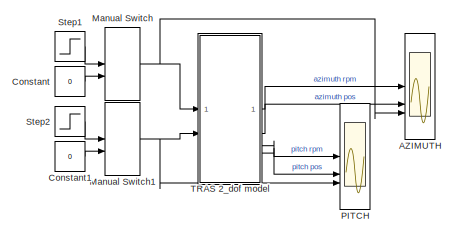
[diagram: root canvas - part 1/2, top left region]
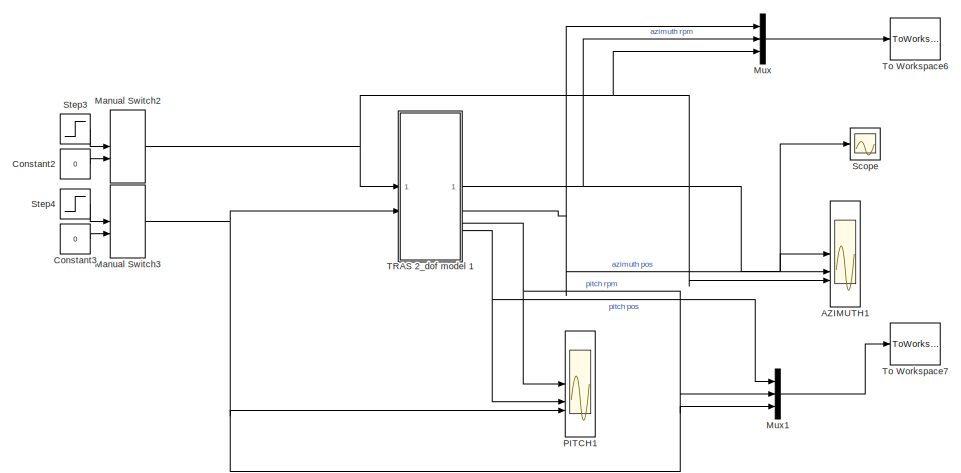
[diagram: root canvas - part 2/2, bottom right region]
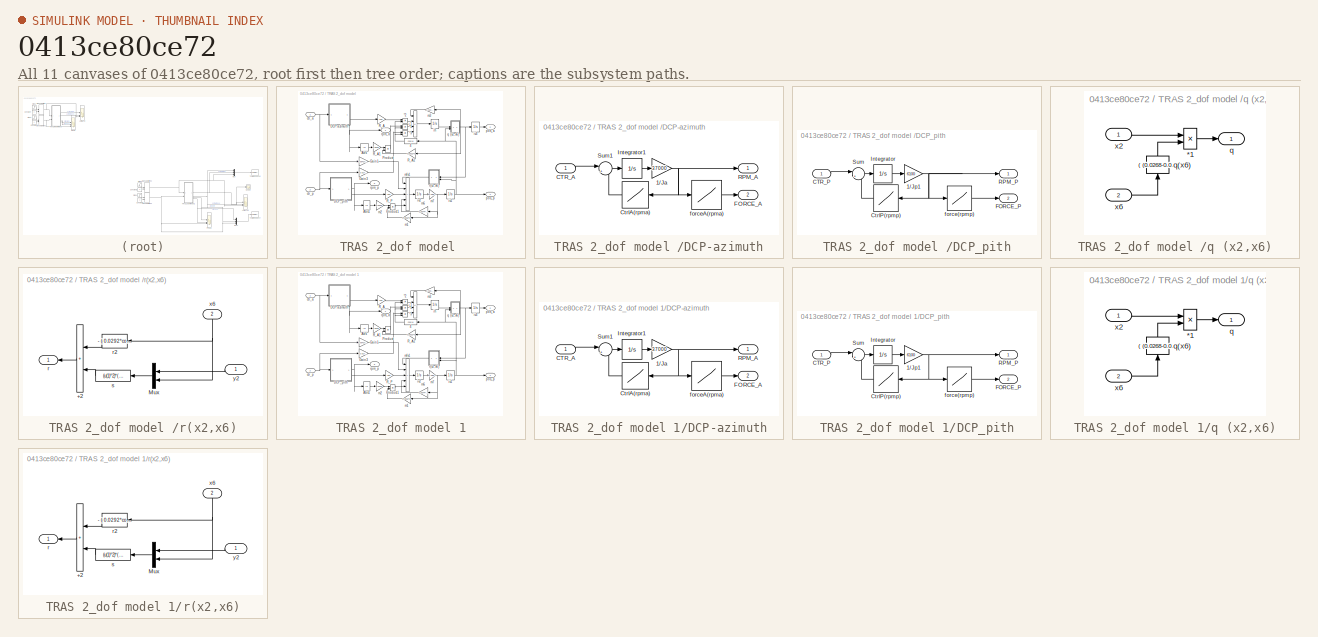
[diagram: thumbnail index - all 11 canvases of the model, root first then tree order]
MODEL slx_0413ce80ce72
KIND model
CONFIG AbsTol = auto
CONFIG EnableMultiTasking = on
CONFIG FixedStep = .02
CONFIG MaxStep = auto
CONFIG MinStep = auto
CONFIG PreLoadFcn = load tras_char
CONFIG RelTol = 1e-3
CONFIG SampleTimeConstraint = Unconstrained
CONFIG SolverName = ode3
CONFIG StartTime = 0.0
CONFIG StopTime = 20
BLOCK [Scope] AZIMUTH
  Commented = on
  Floating = off
  NumInputPorts = 3
  ScopeSpecificationString = Simulink.scopes.TimeScopeBlockCfg('CurrentConfiguration', extmgr.ConfigurationSet(extmgr.Configuration('Core','General UI',true),extmgr.Configuration('Core','Source UI',true),extmgr.Configuration('Sources','WiredSimulink',true,'DataLoggingSaveFormat','StructureWithTime','DataLoggingLimitDataPoints',true,'DataLoggingDecimation','1','DataLoggingDecimateData',true),extmgr.Configuration('Visuals','Tim...<+3056ch>
BLOCK [Scope] AZIMUTH1
  Floating = off
  NumInputPorts = 3
  ScopeSpecificationString = Simulink.scopes.TimeScopeBlockCfg('CurrentConfiguration', extmgr.ConfigurationSet(extmgr.Configuration('Core','General UI',true),extmgr.Configuration('Core','Source UI',true),extmgr.Configuration('Sources','WiredSimulink',true,'DataLoggingSaveFormat','StructureWithTime','DataLoggingLimitDataPoints',true,'DataLoggingDecimation','1','DataLoggingDecimateData',true,'DataLoggingVariableName','ScopeData...<+3150ch>
BLOCK [Constant] Constant
  Commented = on
  Value = 0
BLOCK [Constant] Constant1
  Commented = on
  Value = 0
BLOCK [Constant] Constant2
  Value = 0
BLOCK [Constant] Constant3
  Value = 0
BLOCK [ManualSwitch] Manual Switch
  Commented = on
BLOCK [ManualSwitch] Manual Switch1
  Commented = on
BLOCK [ManualSwitch] Manual Switch2
  CurrentSetting = 0
BLOCK [ManualSwitch] Manual Switch3
BLOCK [Mux] Mux
  DisplayOption = bar
  Inputs = 3
BLOCK [Mux] Mux1
  DisplayOption = bar
  Inputs = 3
BLOCK [Scope] PITCH
  Commented = on
  Floating = off
  NumInputPorts = 3
  ScopeSpecificationString = Simulink.scopes.TimeScopeBlockCfg('CurrentConfiguration', extmgr.ConfigurationSet(extmgr.Configuration('Core','General UI',true),extmgr.Configuration('Core','Source UI',true),extmgr.Configuration('Sources','WiredSimulink',true,'DataLoggingVariableName','ScopeData1','DataLoggingSaveFormat','StructureWithTime','DataLoggingLimitDataPoints',true,'DataLoggingDecimation','1','DataLoggingDecimateData',tr...<+3090ch>
BLOCK [Scope] PITCH1
  Floating = off
  NumInputPorts = 3
  ScopeSpecificationString = Simulink.scopes.TimeScopeBlockCfg('CurrentConfiguration', extmgr.ConfigurationSet(extmgr.Configuration('Core','General UI',true),extmgr.Configuration('Core','Source UI',true),extmgr.Configuration('Sources','WiredSimulink',true,'DataLoggingVariableName','ScopeData3','DataLoggingSaveFormat','StructureWithTime','DataLoggingLimitDataPoints',true,'DataLoggingDecimation','1','DataLoggingDecimateData',tr...<+3147ch>
BLOCK [Scope] Scope
  Floating = off
  NumInputPorts = 1
  ScopeSpecificationString = Simulink.scopes.TimeScopeBlockCfg('CurrentConfiguration', extmgr.ConfigurationSet(extmgr.Configuration('Core','General UI',true),extmgr.Configuration('Core','Source UI',true),extmgr.Configuration('Sources','WiredSimulink',true,'DataLoggingVariableName','ScopeData4'),extmgr.Configuration('Visuals','Time Domain',true,'SerializedDisplays',{struct('MinYLimReal','4163.431268','MaxYLimReal','4163.431322...<+1473ch>
BLOCK [Step] Step1
  Commented = on
  SampleTime = 0
BLOCK [Step] Step2
  Commented = on
  SampleTime = 0
BLOCK [Step] Step3
  SampleTime = 0
BLOCK [Step] Step4
  SampleTime = 0
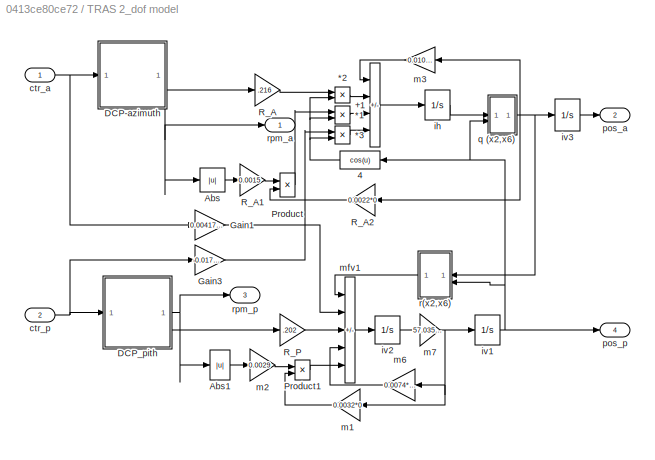
BLOCK [SubSystem] TRAS 2_dof model 
  Commented = on
  NameLocation = top
BLOCK [Product] TRAS 2_dof model /*1
  InputSameDT = on
  OutDataTypeStr = Inherit: Same as first input
  SaturateOnIntegerOverflow = on
BLOCK [Product] TRAS 2_dof model /*2
  InputSameDT = on
  OutDataTypeStr = Inherit: Same as first input
  SaturateOnIntegerOverflow = on
BLOCK [Product] TRAS 2_dof model /*3
  InputSameDT = on
  OutDataTypeStr = Inherit: Same as first input
  SaturateOnIntegerOverflow = on
BLOCK [Sum] TRAS 2_dof model /+1
  IconShape = rectangular
  InputSameDT = on
  Inputs = -+--
  NameLocation = top
  OutDataTypeStr = Inherit: Same as first input
  SaturateOnIntegerOverflow = on
BLOCK [Fcn] TRAS 2_dof model /4
  Expr = cos(u)
  NameLocation = top
BLOCK [Abs] TRAS 2_dof model /Abs
BLOCK [Abs] TRAS 2_dof model /Abs1
BLOCK [SubSystem] TRAS 2_dof model /DCP-azimuth
  NameLocation = top
BLOCK [Gain] TRAS 2_dof model /DCP-azimuth/1//Ja
  Gain = 37000
  OutDataTypeStr = Inherit: Same as input
  ParamDataTypeStr = Inherit: Same as input
  SaturateOnIntegerOverflow = on
BLOCK [Inport] TRAS 2_dof model /DCP-azimuth/CTR_A
BLOCK [Lookup] TRAS 2_dof model /DCP-azimuth/CtrlA(rpma)
  InputValues = rpm_a
  Table = control_a
BLOCK [Outport] TRAS 2_dof model /DCP-azimuth/FORCE_A
  Port = 2
BLOCK [Integrator] TRAS 2_dof model /DCP-azimuth/Integrator1
BLOCK [Outport] TRAS 2_dof model /DCP-azimuth/RPM_A
BLOCK [Sum] TRAS 2_dof model /DCP-azimuth/Sum1
  InputSameDT = on
  Inputs = |+-
  OutDataTypeStr = Inherit: Same as first input
  SaturateOnIntegerOverflow = on
BLOCK [Lookup] TRAS 2_dof model /DCP-azimuth/forceA(rpma)
  InputValues = rpm_a
  NameLocation = top
  Table = force_a
BLOCK [SubSystem] TRAS 2_dof model /DCP_pith
BLOCK [Gain] TRAS 2_dof model /DCP_pith/1//Jp1
  Gain = 6100
  OutDataTypeStr = Inherit: Same as input
  ParamDataTypeStr = Inherit: Same as input
BLOCK [Inport] TRAS 2_dof model /DCP_pith/CTR_P
BLOCK [Lookup] TRAS 2_dof model /DCP_pith/CtrlP(rpmp)
  InputValues = rpm_p
  Table = control_p
BLOCK [Outport] TRAS 2_dof model /DCP_pith/FORCE_P
  Port = 2
BLOCK [Integrator] TRAS 2_dof model /DCP_pith/Integrator
BLOCK [Outport] TRAS 2_dof model /DCP_pith/RPM_P
BLOCK [Sum] TRAS 2_dof model /DCP_pith/Sum
  InputSameDT = on
  Inputs = |+-
  OutDataTypeStr = Inherit: Same as first input
  SaturateOnIntegerOverflow = on
BLOCK [Lookup] TRAS 2_dof model /DCP_pith/force(rpmp)
  InputValues = rpm_p
  NameLocation = top
  Table = force_p
BLOCK [Gain] TRAS 2_dof model /Gain1
  Gain = 0.00417495398545
  NameLocation = top
  OutDataTypeStr = Inherit: Same as input
  ParamDataTypeStr = Inherit: Same as input
  SaturateOnIntegerOverflow = on
BLOCK [Gain] TRAS 2_dof model /Gain3
  Gain = -0.01782003784180
  NameLocation = top
  OutDataTypeStr = Inherit: Same as input
  ParamDataTypeStr = Inherit: Same as input
  SaturateOnIntegerOverflow = on
BLOCK [Product] TRAS 2_dof model /Product
  InputSameDT = on
  OutDataTypeStr = Inherit: Same as first input
  SaturateOnIntegerOverflow = on
BLOCK [Product] TRAS 2_dof model /Product1
  OutDataTypeStr = Inherit: Same as first input
  SaturateOnIntegerOverflow = on
BLOCK [Gain] TRAS 2_dof model /R_A
  Gain = .216
  NameLocation = top
  OutDataTypeStr = Inherit: Same as input
  ParamDataTypeStr = Inherit: Same as input
BLOCK [Gain] TRAS 2_dof model /R_A1
  Gain = 0.0015
  NameLocation = top
  OutDataTypeStr = Inherit: Same as input
  ParamDataTypeStr = Inherit: Same as input
BLOCK [Gain] TRAS 2_dof model /R_A2
  Gain = 0.0022*0
  NameLocation = top
  OutDataTypeStr = Inherit: Same as input
  ParamDataTypeStr = Inherit: Same as input
BLOCK [Gain] TRAS 2_dof model /R_P
  Gain = .202
  OutDataTypeStr = Inherit: Same as input
  ParamDataTypeStr = Inherit: Same as input
BLOCK [Inport] TRAS 2_dof model /ctr_a
BLOCK [Inport] TRAS 2_dof model /ctr_p
  Port = 2
BLOCK [Integrator] TRAS 2_dof model /ih
  LowerSaturationLimit = -10
  UpperSaturationLimit = 10
BLOCK [Integrator] TRAS 2_dof model /iv1
  LimitOutput = on
  LowerSaturationLimit = -pi/2
  NameLocation = top
  UpperSaturationLimit = pi/2
BLOCK [Integrator] TRAS 2_dof model /iv2
  LowerSaturationLimit = -pi
  NameLocation = top
  UpperSaturationLimit = pi
BLOCK [Integrator] TRAS 2_dof model /iv3
  LimitOutput = on
  LowerSaturationLimit = -6
  NameLocation = top
  UpperSaturationLimit = 6
BLOCK [Gain] TRAS 2_dof model /m1
  Gain = 0.0032*0
  NameLocation = top
  OutDataTypeStr = Inherit: Same as input
  ParamDataTypeStr = Inherit: Same as input
  SaturateOnIntegerOverflow = on
BLOCK [Gain] TRAS 2_dof model /m2
  Gain = 0.0029
  NameLocation = top
  OutDataTypeStr = Inherit: Same as input
  ParamDataTypeStr = Inherit: Same as input
  SaturateOnIntegerOverflow = on
BLOCK [Gain] TRAS 2_dof model /m3
  Gain = 0.0108*0.4935*1.1051
  NameLocation = top
  OutDataTypeStr = Inherit: Same as input
  ParamDataTypeStr = Inherit: Same as input
BLOCK [Gain] TRAS 2_dof model /m6
  Gain = 0.0074*1.7175
  OutDataTypeStr = Inherit: Same as input
  ParamDataTypeStr = Inherit: Same as input
BLOCK [Gain] TRAS 2_dof model /m7
  Gain = 57.0357*0.5833
  NameLocation = top
  OutDataTypeStr = Inherit: Same as input
  ParamDataTypeStr = Inherit: Same as input
  SaturateOnIntegerOverflow = on
BLOCK [Sum] TRAS 2_dof model /mfv1
  IconShape = rectangular
  InputSameDT = on
  Inputs = +++--
  NameLocation = top
  OutDataTypeStr = Inherit: Same as first input
  SaturateOnIntegerOverflow = on
BLOCK [Outport] TRAS 2_dof model /pos_a
  Port = 2
BLOCK [Outport] TRAS 2_dof model /pos_p
  Port = 4
BLOCK [SubSystem] TRAS 2_dof model /q (x2,x6)
BLOCK [Fcn] TRAS 2_dof model /q (x2,x6)/ q(x6)
  Expr = ( (0.0268-0.00300962066650)*cos(u)^2) +0.00300962066650
  NameLocation = left
BLOCK [Product] TRAS 2_dof model /q (x2,x6)/*1
  InputSameDT = on
  Inputs = */
  OutDataTypeStr = Inherit: Same as first input
  SaturateOnIntegerOverflow = on
BLOCK [Outport] TRAS 2_dof model /q (x2,x6)/q
BLOCK [Inport] TRAS 2_dof model /q (x2,x6)/x2
BLOCK [Inport] TRAS 2_dof model /q (x2,x6)/x6
  Port = 2
BLOCK [SubSystem] TRAS 2_dof model /r(x2,x6)
BLOCK [Sum] TRAS 2_dof model /r(x2,x6)/+2
  IconShape = rectangular
  InputSameDT = on
  OutDataTypeStr = Inherit: Same as first input
  SaturateOnIntegerOverflow = on
BLOCK [Mux] TRAS 2_dof model /r(x2,x6)/Mux
  DisplayOption = bar
  Inputs = 2
  NameLocation = top
BLOCK [Outport] TRAS 2_dof model /r(x2,x6)/r
BLOCK [Fcn] TRAS 2_dof model /r(x2,x6)/r2
  Expr = - ( 0.0292*cos(u)+ 0.0546*sin(u))*1.7143
BLOCK [Fcn] TRAS 2_dof model /r(x2,x6)/s
  Expr = (u(1)^2)*(     -0.07389953104162*  0.28753198180218*sin(u(2))*cos(u(2)))
BLOCK [Inport] TRAS 2_dof model /r(x2,x6)/x6
  NameLocation = right
  Port = 2
BLOCK [Inport] TRAS 2_dof model /r(x2,x6)/y2
BLOCK [Outport] TRAS 2_dof model /rpm_a
BLOCK [Outport] TRAS 2_dof model /rpm_p
  Port = 3
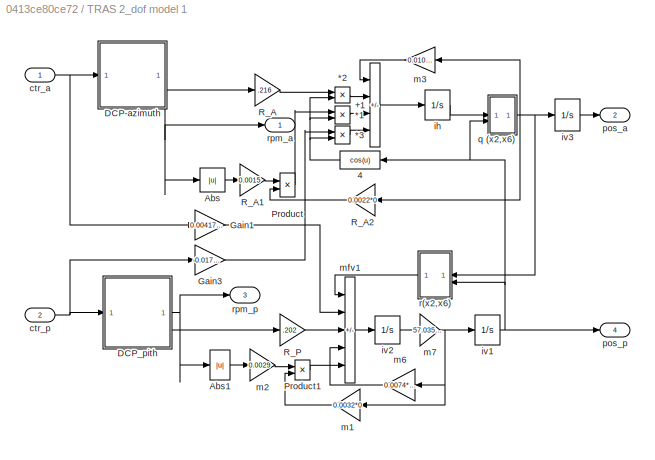
BLOCK [SubSystem] TRAS 2_dof model 1
  NameLocation = top
BLOCK [Product] TRAS 2_dof model 1/*1
  InputSameDT = on
  OutDataTypeStr = Inherit: Same as first input
  SaturateOnIntegerOverflow = on
BLOCK [Product] TRAS 2_dof model 1/*2
  InputSameDT = on
  OutDataTypeStr = Inherit: Same as first input
  SaturateOnIntegerOverflow = on
BLOCK [Product] TRAS 2_dof model 1/*3
  InputSameDT = on
  OutDataTypeStr = Inherit: Same as first input
  SaturateOnIntegerOverflow = on
BLOCK [Sum] TRAS 2_dof model 1/+1
  IconShape = rectangular
  InputSameDT = on
  Inputs = -+--
  NameLocation = top
  OutDataTypeStr = Inherit: Same as first input
  SaturateOnIntegerOverflow = on
BLOCK [Fcn] TRAS 2_dof model 1/4
  Expr = cos(u)
  NameLocation = top
BLOCK [Abs] TRAS 2_dof model 1/Abs
BLOCK [Abs] TRAS 2_dof model 1/Abs1
BLOCK [SubSystem] TRAS 2_dof model 1/DCP-azimuth
  NameLocation = top
BLOCK [Gain] TRAS 2_dof model 1/DCP-azimuth/1//Ja
  Gain = 37000
  OutDataTypeStr = Inherit: Same as input
  ParamDataTypeStr = Inherit: Same as input
  SaturateOnIntegerOverflow = on
BLOCK [Inport] TRAS 2_dof model 1/DCP-azimuth/CTR_A
BLOCK [Lookup] TRAS 2_dof model 1/DCP-azimuth/CtrlA(rpma)
  InputValues = rpm_a
  Table = control_a
BLOCK [Outport] TRAS 2_dof model 1/DCP-azimuth/FORCE_A
  Port = 2
BLOCK [Integrator] TRAS 2_dof model 1/DCP-azimuth/Integrator1
BLOCK [Outport] TRAS 2_dof model 1/DCP-azimuth/RPM_A
BLOCK [Sum] TRAS 2_dof model 1/DCP-azimuth/Sum1
  InputSameDT = on
  Inputs = |+-
  OutDataTypeStr = Inherit: Same as first input
  SaturateOnIntegerOverflow = on
BLOCK [Lookup] TRAS 2_dof model 1/DCP-azimuth/forceA(rpma)
  InputValues = rpm_a
  NameLocation = top
  Table = force_a
BLOCK [SubSystem] TRAS 2_dof model 1/DCP_pith
BLOCK [Gain] TRAS 2_dof model 1/DCP_pith/1//Jp1
  Gain = 6100
  OutDataTypeStr = Inherit: Same as input
  ParamDataTypeStr = Inherit: Same as input
BLOCK [Inport] TRAS 2_dof model 1/DCP_pith/CTR_P
BLOCK [Lookup] TRAS 2_dof model 1/DCP_pith/CtrlP(rpmp)
  InputValues = rpm_p
  Table = control_p
BLOCK [Outport] TRAS 2_dof model 1/DCP_pith/FORCE_P
  Port = 2
BLOCK [Integrator] TRAS 2_dof model 1/DCP_pith/Integrator
BLOCK [Outport] TRAS 2_dof model 1/DCP_pith/RPM_P
BLOCK [Sum] TRAS 2_dof model 1/DCP_pith/Sum
  InputSameDT = on
  Inputs = |+-
  OutDataTypeStr = Inherit: Same as first input
  SaturateOnIntegerOverflow = on
BLOCK [Lookup] TRAS 2_dof model 1/DCP_pith/force(rpmp)
  InputValues = rpm_p
  NameLocation = top
  Table = force_p
BLOCK [Gain] TRAS 2_dof model 1/Gain1
  Gain = 0.00417495398545
  NameLocation = top
  OutDataTypeStr = Inherit: Same as input
  ParamDataTypeStr = Inherit: Same as input
  SaturateOnIntegerOverflow = on
BLOCK [Gain] TRAS 2_dof model 1/Gain3
  Gain = -0.01782003784180
  NameLocation = top
  OutDataTypeStr = Inherit: Same as input
  ParamDataTypeStr = Inherit: Same as input
  SaturateOnIntegerOverflow = on
BLOCK [Product] TRAS 2_dof model 1/Product
  InputSameDT = on
  OutDataTypeStr = Inherit: Same as first input
  SaturateOnIntegerOverflow = on
BLOCK [Product] TRAS 2_dof model 1/Product1
  OutDataTypeStr = Inherit: Same as first input
  SaturateOnIntegerOverflow = on
BLOCK [Gain] TRAS 2_dof model 1/R_A
  Gain = .216
  NameLocation = top
  OutDataTypeStr = Inherit: Same as input
  ParamDataTypeStr = Inherit: Same as input
BLOCK [Gain] TRAS 2_dof model 1/R_A1
  Gain = 0.0015
  NameLocation = top
  OutDataTypeStr = Inherit: Same as input
  ParamDataTypeStr = Inherit: Same as input
BLOCK [Gain] TRAS 2_dof model 1/R_A2
  Gain = 0.0022*0
  NameLocation = top
  OutDataTypeStr = Inherit: Same as input
  ParamDataTypeStr = Inherit: Same as input
BLOCK [Gain] TRAS 2_dof model 1/R_P
  Gain = .202
  OutDataTypeStr = Inherit: Same as input
  ParamDataTypeStr = Inherit: Same as input
BLOCK [Inport] TRAS 2_dof model 1/ctr_a
BLOCK [Inport] TRAS 2_dof model 1/ctr_p
  Port = 2
BLOCK [Integrator] TRAS 2_dof model 1/ih
  LowerSaturationLimit = -10
  UpperSaturationLimit = 10
BLOCK [Integrator] TRAS 2_dof model 1/iv1
  LimitOutput = on
  LowerSaturationLimit = -pi/2
  NameLocation = top
  UpperSaturationLimit = pi/2
BLOCK [Integrator] TRAS 2_dof model 1/iv2
  LowerSaturationLimit = -pi
  NameLocation = top
  UpperSaturationLimit = pi
BLOCK [Integrator] TRAS 2_dof model 1/iv3
  LimitOutput = on
  LowerSaturationLimit = -6
  NameLocation = top
  UpperSaturationLimit = 6
BLOCK [Gain] TRAS 2_dof model 1/m1
  Gain = 0.0032*0
  NameLocation = top
  OutDataTypeStr = Inherit: Same as input
  ParamDataTypeStr = Inherit: Same as input
  SaturateOnIntegerOverflow = on
BLOCK [Gain] TRAS 2_dof model 1/m2
  Gain = 0.0029
  NameLocation = top
  OutDataTypeStr = Inherit: Same as input
  ParamDataTypeStr = Inherit: Same as input
  SaturateOnIntegerOverflow = on
BLOCK [Gain] TRAS 2_dof model 1/m3
  Gain = 0.0108*0.4935*1.1051
  NameLocation = top
  OutDataTypeStr = Inherit: Same as input
  ParamDataTypeStr = Inherit: Same as input
BLOCK [Gain] TRAS 2_dof model 1/m6
  Gain = 0.0074*1.7175
  OutDataTypeStr = Inherit: Same as input
  ParamDataTypeStr = Inherit: Same as input
BLOCK [Gain] TRAS 2_dof model 1/m7
  Gain = 57.0357*0.5833
  NameLocation = top
  OutDataTypeStr = Inherit: Same as input
  ParamDataTypeStr = Inherit: Same as input
  SaturateOnIntegerOverflow = on
BLOCK [Sum] TRAS 2_dof model 1/mfv1
  IconShape = rectangular
  InputSameDT = on
  Inputs = +++--
  NameLocation = top
  OutDataTypeStr = Inherit: Same as first input
  SaturateOnIntegerOverflow = on
BLOCK [Outport] TRAS 2_dof model 1/pos_a
  Port = 2
BLOCK [Outport] TRAS 2_dof model 1/pos_p
  Port = 4
BLOCK [SubSystem] TRAS 2_dof model 1/q (x2,x6)
BLOCK [Fcn] TRAS 2_dof model 1/q (x2,x6)/ q(x6)
  Expr = ( (0.0268-0.00300962066650)*cos(u)^2) +0.00300962066650
  NameLocation = left
BLOCK [Product] TRAS 2_dof model 1/q (x2,x6)/*1
  InputSameDT = on
  Inputs = */
  OutDataTypeStr = Inherit: Same as first input
  SaturateOnIntegerOverflow = on
BLOCK [Outport] TRAS 2_dof model 1/q (x2,x6)/q
BLOCK [Inport] TRAS 2_dof model 1/q (x2,x6)/x2
BLOCK [Inport] TRAS 2_dof model 1/q (x2,x6)/x6
  Port = 2
BLOCK [SubSystem] TRAS 2_dof model 1/r(x2,x6)
BLOCK [Sum] TRAS 2_dof model 1/r(x2,x6)/+2
  IconShape = rectangular
  InputSameDT = on
  OutDataTypeStr = Inherit: Same as first input
  SaturateOnIntegerOverflow = on
BLOCK [Mux] TRAS 2_dof model 1/r(x2,x6)/Mux
  DisplayOption = bar
  Inputs = 2
  NameLocation = top
BLOCK [Outport] TRAS 2_dof model 1/r(x2,x6)/r
BLOCK [Fcn] TRAS 2_dof model 1/r(x2,x6)/r2
  Expr = - ( 0.0292*cos(u)+ 0.0546*sin(u))*1.7143
BLOCK [Fcn] TRAS 2_dof model 1/r(x2,x6)/s
  Expr = (u(1)^2)*(     -0.07389953104162*  0.28753198180218*sin(u(2))*cos(u(2)))
BLOCK [Inport] TRAS 2_dof model 1/r(x2,x6)/x6
  NameLocation = right
  Port = 2
BLOCK [Inport] TRAS 2_dof model 1/r(x2,x6)/y2
BLOCK [Outport] TRAS 2_dof model 1/rpm_a
BLOCK [Outport] TRAS 2_dof model 1/rpm_p
  Port = 3
BLOCK [ToWorkspace] To Workspace6
  MaxDataPoints = Inf
  Save2DSignal = 2-D array (concatenate along first dimension)
  SaveFormat = Timeseries
  VariableName = azimuth_variables_step03_azimuth_din0
BLOCK [ToWorkspace] To Workspace7
  MaxDataPoints = Inf
  Save2DSignal = 2-D array (concatenate along first dimension)
  SaveFormat = Timeseries
  VariableName = pitch_variables_step03_pitch_din0
LINE Constant1:1 -> Manual Switch1:2
LINE Constant2:1 -> Manual Switch2:2
LINE Constant3:1 -> Manual Switch3:2
LINE Constant:1 -> Manual Switch:2
NET Manual Switch1:1 -> PITCH:3, TRAS 2_dof model :2
NET Manual Switch2:1 -> AZIMUTH1:3, Mux:3, TRAS 2_dof model 1:1
NET Manual Switch3:1 -> Mux1:3, PITCH1:3, TRAS 2_dof model 1:2
NET Manual Switch:1 -> AZIMUTH:3, TRAS 2_dof model :1
LINE Mux1:1 -> To Workspace7:1
LINE Mux:1 -> To Workspace6:1
LINE Step1:1 -> Manual Switch:1
LINE Step2:1 -> Manual Switch1:1
LINE Step3:1 -> Manual Switch2:1
LINE Step4:1 -> Manual Switch3:1
LINE TRAS 2_dof model /*1:1 -> TRAS 2_dof model /+1:3
LINE TRAS 2_dof model /*2:1 -> TRAS 2_dof model /+1:2
LINE TRAS 2_dof model /*3:1 -> TRAS 2_dof model /+1:4
LINE TRAS 2_dof model /+1:1 -> TRAS 2_dof model /ih:1
NET TRAS 2_dof model /4:1 -> TRAS 2_dof model /*1:2, TRAS 2_dof model /*2:2, TRAS 2_dof model /*3:2
LINE TRAS 2_dof model /Abs1:1 -> TRAS 2_dof model /m2:1
LINE TRAS 2_dof model /Abs:1 -> TRAS 2_dof model /R_A1:1
NET TRAS 2_dof model /DCP-azimuth/1//Ja:1 -> TRAS 2_dof model /DCP-azimuth/CtrlA(rpma):1, TRAS 2_dof model /DCP-azimuth/RPM_A:1, TRAS 2_dof model /DCP-azimuth/forceA(rpma):1
LINE TRAS 2_dof model /DCP-azimuth/CTR_A:1 -> TRAS 2_dof model /DCP-azimuth/Sum1:1
LINE TRAS 2_dof model /DCP-azimuth/CtrlA(rpma):1 -> TRAS 2_dof model /DCP-azimuth/Sum1:2
LINE TRAS 2_dof model /DCP-azimuth/Integrator1:1 -> TRAS 2_dof model /DCP-azimuth/1//Ja:1
LINE TRAS 2_dof model /DCP-azimuth/Sum1:1 -> TRAS 2_dof model /DCP-azimuth/Integrator1:1
LINE TRAS 2_dof model /DCP-azimuth/forceA(rpma):1 -> TRAS 2_dof model /DCP-azimuth/FORCE_A:1
NET TRAS 2_dof model /DCP-azimuth:1 -> TRAS 2_dof model /Abs:1, TRAS 2_dof model /rpm_a:1
LINE TRAS 2_dof model /DCP-azimuth:2 -> TRAS 2_dof model /R_A:1
NET TRAS 2_dof model /DCP_pith/1//Jp1:1 -> TRAS 2_dof model /DCP_pith/CtrlP(rpmp):1, TRAS 2_dof model /DCP_pith/RPM_P:1, TRAS 2_dof model /DCP_pith/force(rpmp):1
LINE TRAS 2_dof model /DCP_pith/CTR_P:1 -> TRAS 2_dof model /DCP_pith/Sum:1
LINE TRAS 2_dof model /DCP_pith/CtrlP(rpmp):1 -> TRAS 2_dof model /DCP_pith/Sum:2
LINE TRAS 2_dof model /DCP_pith/Integrator:1 -> TRAS 2_dof model /DCP_pith/1//Jp1:1
LINE TRAS 2_dof model /DCP_pith/Sum:1 -> TRAS 2_dof model /DCP_pith/Integrator:1
LINE TRAS 2_dof model /DCP_pith/force(rpmp):1 -> TRAS 2_dof model /DCP_pith/FORCE_P:1
NET TRAS 2_dof model /DCP_pith:1 -> TRAS 2_dof model /Abs1:1, TRAS 2_dof model /rpm_p:1
LINE TRAS 2_dof model /DCP_pith:2 -> TRAS 2_dof model /R_P:1
LINE TRAS 2_dof model /Gain1:1 -> TRAS 2_dof model /mfv1:2
LINE TRAS 2_dof model /Gain3:1 -> TRAS 2_dof model /*3:1
LINE TRAS 2_dof model /Product1:1 -> TRAS 2_dof model /mfv1:5
LINE TRAS 2_dof model /Product:1 -> TRAS 2_dof model /*1:1
LINE TRAS 2_dof model /R_A1:1 -> TRAS 2_dof model /Product:1
LINE TRAS 2_dof model /R_A2:1 -> TRAS 2_dof model /Product:2
LINE TRAS 2_dof model /R_A:1 -> TRAS 2_dof model /*2:1
LINE TRAS 2_dof model /R_P:1 -> TRAS 2_dof model /mfv1:3
NET TRAS 2_dof model /ctr_a:1 -> TRAS 2_dof model /DCP-azimuth:1, TRAS 2_dof model /Gain1:1
NET TRAS 2_dof model /ctr_p:1 -> TRAS 2_dof model /DCP_pith:1, TRAS 2_dof model /Gain3:1
LINE TRAS 2_dof model /ih:1 -> TRAS 2_dof model /q (x2,x6):1
NET TRAS 2_dof model /iv1:1 -> TRAS 2_dof model /4:1, TRAS 2_dof model /pos_p:1, TRAS 2_dof model /q (x2,x6):2, TRAS 2_dof model /r(x2,x6):2
LINE TRAS 2_dof model /iv2:1 -> TRAS 2_dof model /m7:1
LINE TRAS 2_dof model /iv3:1 -> TRAS 2_dof model /pos_a:1
LINE TRAS 2_dof model /m1:1 -> TRAS 2_dof model /Product1:2
LINE TRAS 2_dof model /m2:1 -> TRAS 2_dof model /Product1:1
LINE TRAS 2_dof model /m3:1 -> TRAS 2_dof model /+1:1
LINE TRAS 2_dof model /m6:1 -> TRAS 2_dof model /mfv1:4
NET TRAS 2_dof model /m7:1 -> TRAS 2_dof model /iv1:1, TRAS 2_dof model /m1:1, TRAS 2_dof model /m6:1
LINE TRAS 2_dof model /mfv1:1 -> TRAS 2_dof model /iv2:1
LINE TRAS 2_dof model /q (x2,x6)/ q(x6):1 -> TRAS 2_dof model /q (x2,x6)/*1:2
LINE TRAS 2_dof model /q (x2,x6)/*1:1 -> TRAS 2_dof model /q (x2,x6)/q:1
LINE TRAS 2_dof model /q (x2,x6)/x2:1 -> TRAS 2_dof model /q (x2,x6)/*1:1
LINE TRAS 2_dof model /q (x2,x6)/x6:1 -> TRAS 2_dof model /q (x2,x6)/ q(x6):1
NET TRAS 2_dof model /q (x2,x6):1 -> TRAS 2_dof model /R_A2:1, TRAS 2_dof model /iv3:1, TRAS 2_dof model /m3:1, TRAS 2_dof model /r(x2,x6):1
LINE TRAS 2_dof model /r(x2,x6)/+2:1 -> TRAS 2_dof model /r(x2,x6)/r:1
LINE TRAS 2_dof model /r(x2,x6)/Mux:1 -> TRAS 2_dof model /r(x2,x6)/s:1
LINE TRAS 2_dof model /r(x2,x6)/r2:1 -> TRAS 2_dof model /r(x2,x6)/+2:1
LINE TRAS 2_dof model /r(x2,x6)/s:1 -> TRAS 2_dof model /r(x2,x6)/+2:2
NET TRAS 2_dof model /r(x2,x6)/x6:1 -> TRAS 2_dof model /r(x2,x6)/Mux:2, TRAS 2_dof model /r(x2,x6)/r2:1
LINE TRAS 2_dof model /r(x2,x6)/y2:1 -> TRAS 2_dof model /r(x2,x6)/Mux:1
LINE TRAS 2_dof model /r(x2,x6):1 -> TRAS 2_dof model /mfv1:1
LINE TRAS 2_dof model 1/*1:1 -> TRAS 2_dof model 1/+1:3
LINE TRAS 2_dof model 1/*2:1 -> TRAS 2_dof model 1/+1:2
LINE TRAS 2_dof model 1/*3:1 -> TRAS 2_dof model 1/+1:4
LINE TRAS 2_dof model 1/+1:1 -> TRAS 2_dof model 1/ih:1
NET TRAS 2_dof model 1/4:1 -> TRAS 2_dof model 1/*1:2, TRAS 2_dof model 1/*2:2, TRAS 2_dof model 1/*3:2
LINE TRAS 2_dof model 1/Abs1:1 -> TRAS 2_dof model 1/m2:1
LINE TRAS 2_dof model 1/Abs:1 -> TRAS 2_dof model 1/R_A1:1
NET TRAS 2_dof model 1/DCP-azimuth/1//Ja:1 -> TRAS 2_dof model 1/DCP-azimuth/CtrlA(rpma):1, TRAS 2_dof model 1/DCP-azimuth/RPM_A:1, TRAS 2_dof model 1/DCP-azimuth/forceA(rpma):1
LINE TRAS 2_dof model 1/DCP-azimuth/CTR_A:1 -> TRAS 2_dof model 1/DCP-azimuth/Sum1:1
LINE TRAS 2_dof model 1/DCP-azimuth/CtrlA(rpma):1 -> TRAS 2_dof model 1/DCP-azimuth/Sum1:2
LINE TRAS 2_dof model 1/DCP-azimuth/Integrator1:1 -> TRAS 2_dof model 1/DCP-azimuth/1//Ja:1
LINE TRAS 2_dof model 1/DCP-azimuth/Sum1:1 -> TRAS 2_dof model 1/DCP-azimuth/Integrator1:1
LINE TRAS 2_dof model 1/DCP-azimuth/forceA(rpma):1 -> TRAS 2_dof model 1/DCP-azimuth/FORCE_A:1
NET TRAS 2_dof model 1/DCP-azimuth:1 -> TRAS 2_dof model 1/Abs:1, TRAS 2_dof model 1/rpm_a:1
LINE TRAS 2_dof model 1/DCP-azimuth:2 -> TRAS 2_dof model 1/R_A:1
NET TRAS 2_dof model 1/DCP_pith/1//Jp1:1 -> TRAS 2_dof model 1/DCP_pith/CtrlP(rpmp):1, TRAS 2_dof model 1/DCP_pith/RPM_P:1, TRAS 2_dof model 1/DCP_pith/force(rpmp):1
LINE TRAS 2_dof model 1/DCP_pith/CTR_P:1 -> TRAS 2_dof model 1/DCP_pith/Sum:1
LINE TRAS 2_dof model 1/DCP_pith/CtrlP(rpmp):1 -> TRAS 2_dof model 1/DCP_pith/Sum:2
LINE TRAS 2_dof model 1/DCP_pith/Integrator:1 -> TRAS 2_dof model 1/DCP_pith/1//Jp1:1
LINE TRAS 2_dof model 1/DCP_pith/Sum:1 -> TRAS 2_dof model 1/DCP_pith/Integrator:1
LINE TRAS 2_dof model 1/DCP_pith/force(rpmp):1 -> TRAS 2_dof model 1/DCP_pith/FORCE_P:1
NET TRAS 2_dof model 1/DCP_pith:1 -> TRAS 2_dof model 1/Abs1:1, TRAS 2_dof model 1/rpm_p:1
LINE TRAS 2_dof model 1/DCP_pith:2 -> TRAS 2_dof model 1/R_P:1
LINE TRAS 2_dof model 1/Gain1:1 -> TRAS 2_dof model 1/mfv1:2
LINE TRAS 2_dof model 1/Gain3:1 -> TRAS 2_dof model 1/*3:1
LINE TRAS 2_dof model 1/Product1:1 -> TRAS 2_dof model 1/mfv1:5
LINE TRAS 2_dof model 1/Product:1 -> TRAS 2_dof model 1/*1:1
LINE TRAS 2_dof model 1/R_A1:1 -> TRAS 2_dof model 1/Product:1
LINE TRAS 2_dof model 1/R_A2:1 -> TRAS 2_dof model 1/Product:2
LINE TRAS 2_dof model 1/R_A:1 -> TRAS 2_dof model 1/*2:1
LINE TRAS 2_dof model 1/R_P:1 -> TRAS 2_dof model 1/mfv1:3
NET TRAS 2_dof model 1/ctr_a:1 -> TRAS 2_dof model 1/DCP-azimuth:1, TRAS 2_dof model 1/Gain1:1
NET TRAS 2_dof model 1/ctr_p:1 -> TRAS 2_dof model 1/DCP_pith:1, TRAS 2_dof model 1/Gain3:1
LINE TRAS 2_dof model 1/ih:1 -> TRAS 2_dof model 1/q (x2,x6):1
NET TRAS 2_dof model 1/iv1:1 -> TRAS 2_dof model 1/4:1, TRAS 2_dof model 1/pos_p:1, TRAS 2_dof model 1/q (x2,x6):2, TRAS 2_dof model 1/r(x2,x6):2
LINE TRAS 2_dof model 1/iv2:1 -> TRAS 2_dof model 1/m7:1
LINE TRAS 2_dof model 1/iv3:1 -> TRAS 2_dof model 1/pos_a:1
LINE TRAS 2_dof model 1/m1:1 -> TRAS 2_dof model 1/Product1:2
LINE TRAS 2_dof model 1/m2:1 -> TRAS 2_dof model 1/Product1:1
LINE TRAS 2_dof model 1/m3:1 -> TRAS 2_dof model 1/+1:1
LINE TRAS 2_dof model 1/m6:1 -> TRAS 2_dof model 1/mfv1:4
NET TRAS 2_dof model 1/m7:1 -> TRAS 2_dof model 1/iv1:1, TRAS 2_dof model 1/m1:1, TRAS 2_dof model 1/m6:1
LINE TRAS 2_dof model 1/mfv1:1 -> TRAS 2_dof model 1/iv2:1
LINE TRAS 2_dof model 1/q (x2,x6)/ q(x6):1 -> TRAS 2_dof model 1/q (x2,x6)/*1:2
LINE TRAS 2_dof model 1/q (x2,x6)/*1:1 -> TRAS 2_dof model 1/q (x2,x6)/q:1
LINE TRAS 2_dof model 1/q (x2,x6)/x2:1 -> TRAS 2_dof model 1/q (x2,x6)/*1:1
LINE TRAS 2_dof model 1/q (x2,x6)/x6:1 -> TRAS 2_dof model 1/q (x2,x6)/ q(x6):1
NET TRAS 2_dof model 1/q (x2,x6):1 -> TRAS 2_dof model 1/R_A2:1, TRAS 2_dof model 1/iv3:1, TRAS 2_dof model 1/m3:1, TRAS 2_dof model 1/r(x2,x6):1
LINE TRAS 2_dof model 1/r(x2,x6)/+2:1 -> TRAS 2_dof model 1/r(x2,x6)/r:1
LINE TRAS 2_dof model 1/r(x2,x6)/Mux:1 -> TRAS 2_dof model 1/r(x2,x6)/s:1
LINE TRAS 2_dof model 1/r(x2,x6)/r2:1 -> TRAS 2_dof model 1/r(x2,x6)/+2:1
LINE TRAS 2_dof model 1/r(x2,x6)/s:1 -> TRAS 2_dof model 1/r(x2,x6)/+2:2
NET TRAS 2_dof model 1/r(x2,x6)/x6:1 -> TRAS 2_dof model 1/r(x2,x6)/Mux:2, TRAS 2_dof model 1/r(x2,x6)/r2:1
LINE TRAS 2_dof model 1/r(x2,x6)/y2:1 -> TRAS 2_dof model 1/r(x2,x6)/Mux:1
LINE TRAS 2_dof model 1/r(x2,x6):1 -> TRAS 2_dof model 1/mfv1:1
NET TRAS 2_dof model 1:1 -> AZIMUTH1:1, Mux:2, Scope:1
NET TRAS 2_dof model 1:2 -> AZIMUTH1:2, Mux:1
NET TRAS 2_dof model 1:3 -> Mux1:2, PITCH1:1
NET TRAS 2_dof model 1:4 -> Mux1:1, PITCH1:2
LINE TRAS 2_dof model :1 -> AZIMUTH:1
LINE TRAS 2_dof model :2 -> AZIMUTH:2
LINE TRAS 2_dof model :3 -> PITCH:1
LINE TRAS 2_dof model :4 -> PITCH:2
note: NET lines group one-source signal fan-out (src -> all destinations, sorted); 1:1 wires keep LINE
